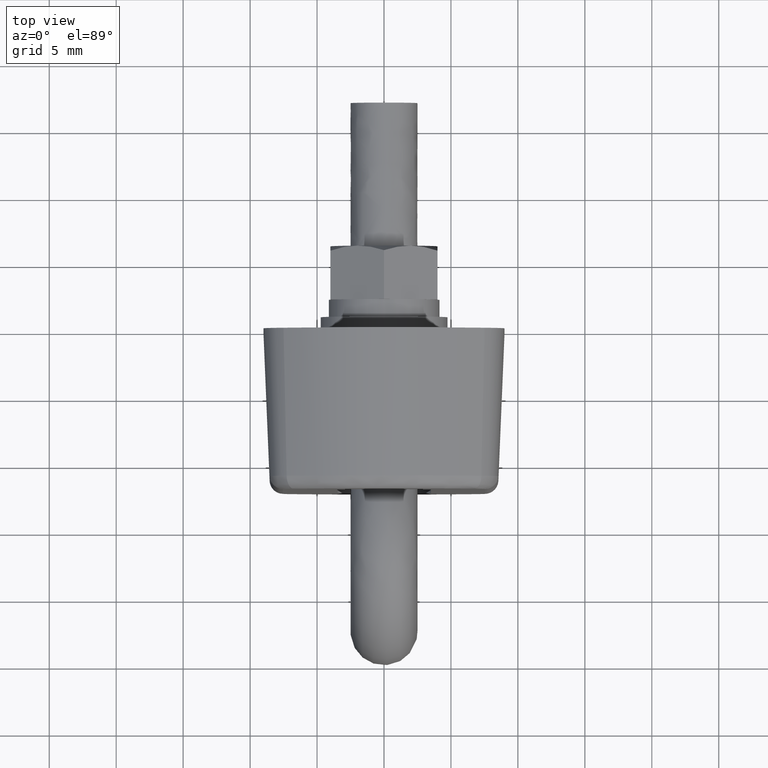
[diagram: clean part render]
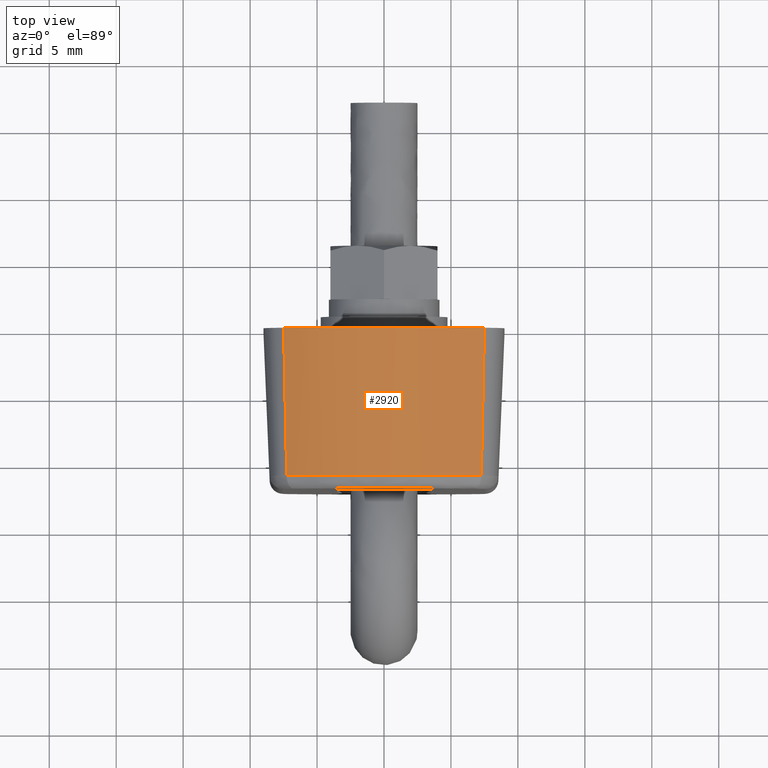
[diagram: same view with one face highlighted and labeled with its STEP entity id]
A machine part, top view. The second image highlights one B-rep face of the part: STEP entity #2920.
In plain terms, the highlighted face is a freeform B-spline surface patch.
Its self-contained STEP definition (entity closure, byte-faithful):
#2390=CARTESIAN_POINT('',(-12.591949904194999,7.269966258220499,-3.958369510343731));
#2391=VERTEX_POINT('',#2390);
#2518=CARTESIAN_POINT('',(-12.591949905293880,-7.269966258854950,-3.958369540797030));
#2519=VERTEX_POINT('',#2518);
#2549=CARTESIAN_POINT('',(-12.591949905293880,-7.269966258854950,-3.958369540797030));
#2550=CARTESIAN_POINT('',(-16.789267645268797,-9.540979E-015,-3.958369525570440));
#2551=CARTESIAN_POINT('',(-12.591949904194999,7.269966258220499,-3.958369510343731));
#2559=(BOUNDED_CURVE()B_SPLINE_CURVE(2,(#2549,#2550,#2551),.UNSPECIFIED.,.F.,.U.)CURVE()GEOMETRIC_REPRESENTATION_ITEM()QUASI_UNIFORM_CURVE()RATIONAL_B_SPLINE_CURVE((1.0,0.866025386171661,1.0))REPRESENTATION_ITEM(''));
#2560=EDGE_CURVE('',#2519,#2391,#2559,.T.);
#2724=CARTESIAN_POINT('',(-12.990379743244141,-7.499999851761930,-15.0));
#2725=VERTEX_POINT('',#2724);
#2739=CARTESIAN_POINT('',(-12.990379743244141,7.499999851761930,-15.0));
#2740=VERTEX_POINT('',#2739);
#2741=CARTESIAN_POINT('',(-12.990379743244141,7.499999851761930,-15.0));
#2742=CARTESIAN_POINT('',(-17.320507451543218,4.336809E-015,-15.0));
#2743=CARTESIAN_POINT('',(-12.990379743244141,-7.499999851761930,-15.0));
#2751=(BOUNDED_CURVE()B_SPLINE_CURVE(2,(#2741,#2742,#2743),.UNSPECIFIED.,.F.,.U.)CURVE()GEOMETRIC_REPRESENTATION_ITEM()QUASI_UNIFORM_CURVE()RATIONAL_B_SPLINE_CURVE((1.0,0.866025386171661,1.0))REPRESENTATION_ITEM(''));
#2752=EDGE_CURVE('',#2740,#2725,#2751,.T.);
#2887=CARTESIAN_POINT('',(-12.990379743244141,-7.499999851761930,-15.0));
#2888=CARTESIAN_POINT('',(-12.591949905293880,-7.269966258854950,-3.958369540797030));
#2889=QUASI_UNIFORM_CURVE('',1,(#2887,#2888),.UNSPECIFIED.,.F.,.U.);
#2890=EDGE_CURVE('',#2725,#2519,#2889,.T.);
#2896=CARTESIAN_POINT('',(-12.387522945402150,7.591084424264355,-3.682328748102324));
#2897=CARTESIAN_POINT('',(-12.799653431320611,7.843638330820902,-15.282941781297440));
#2898=CARTESIAN_POINT('',(-17.163834120594675,-0.203146408942598,-3.682328748102324));
#2899=CARTESIAN_POINT('',(-17.734871552979033,-0.209905050569266,-15.282941781297444));
#2900=CARTESIAN_POINT('',(-12.204386038234157,-7.882147479521604,-3.682328748102324));
#2901=CARTESIAN_POINT('',(-12.610423594769289,-8.144384997476879,-15.282941781297440));
#2909=(BOUNDED_SURFACE()B_SPLINE_SURFACE(1,2,((#2896,#2898,#2900),(#2897,#2899,#2901)),.UNSPECIFIED.,.F.,.F.,.U.)B_SPLINE_SURFACE_WITH_KNOTS((2,2),(3,3),(0.0,11.610678608896070),(0.0,17.319280980384420),.UNSPECIFIED.)GEOMETRIC_REPRESENTATION_ITEM()RATIONAL_B_SPLINE_SURFACE(((1.0,0.845026308508104,0.996764407815711),(1.0,0.845026308508104,0.996764407815711)))REPRESENTATION_ITEM('')SURFACE());
#2910=ORIENTED_EDGE('',*,*,#2890,.T.);
#2911=ORIENTED_EDGE('',*,*,#2560,.T.);
#2912=CARTESIAN_POINT('',(-12.990379743244141,7.499999851761930,-15.0));
#2913=CARTESIAN_POINT('',(-12.591949904194999,7.269966258220499,-3.958369510343731));
#2914=QUASI_UNIFORM_CURVE('',1,(#2912,#2913),.UNSPECIFIED.,.F.,.U.);
#2915=EDGE_CURVE('',#2740,#2391,#2914,.T.);
#2916=ORIENTED_EDGE('',*,*,#2915,.F.);
#2917=ORIENTED_EDGE('',*,*,#2752,.T.);
#2918=EDGE_LOOP('',(#2910,#2911,#2916,#2917));
#2919=FACE_OUTER_BOUND('',#2918,.T.);
#2920=ADVANCED_FACE('',(#2919),#2909,.T.);